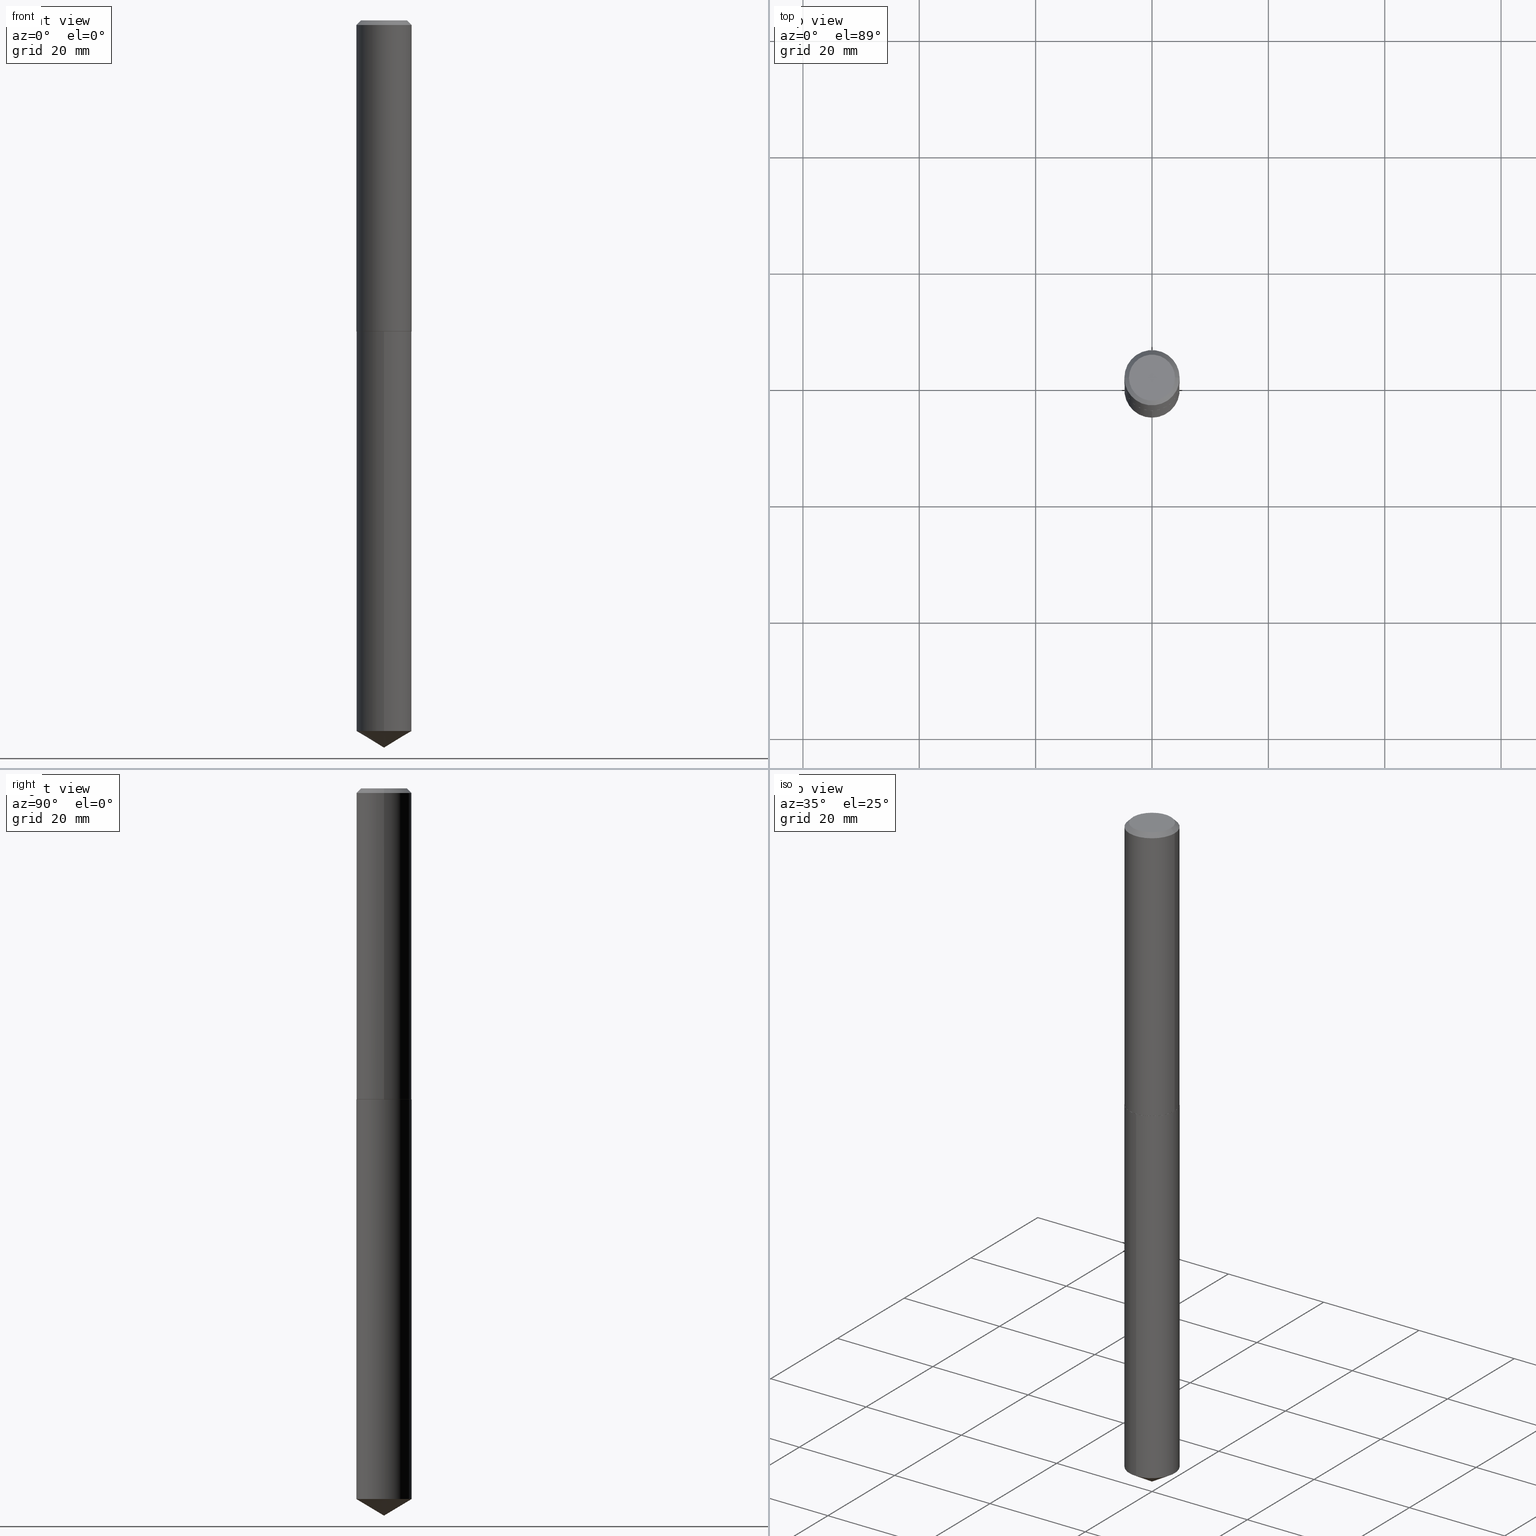
[diagram: canonical four-view strip — front | top / right | iso, engineering-drawing reading convention]
A machine part, canonical four-view strip (front | top / right | iso — engineering-drawing reading convention). The complete STEP part file that produces these views, byte-faithful:
ISO-10303-21;
HEADER;
FILE_DESCRIPTION (( 'STEP AP203' ),
    '1' );
FILE_NAME ('68288.STEP',
    '2024-04-23T12:58:37',
    ( '' ),
    ( '' ),
    'SwSTEP 2.0',
    'SolidWorks 2023',
    '' );
FILE_SCHEMA (( 'CONFIG_CONTROL_DESIGN' ));
ENDSEC;

DATA;
#1 = DIRECTION ( 'NONE',  ( -6.982962677686265922E-15, -1.000000000000000000, 3.468864327941581987E-15 ) ) ;
#2 = EDGE_CURVE ( 'NONE', #375, #233, #285, .T. ) ;
#3 = CARTESIAN_POINT ( 'NONE',  ( 5.147222743258475730E-29, -7.348869921997053302E-15, -2.104800000000000004 ) ) ;
#4 = LENGTH_MEASURE_WITH_UNIT ( LENGTH_MEASURE( 0.02539999999999999897 ), #222 );
#5 = ORIENTED_EDGE ( 'NONE', *, *, #53, .T. ) ;
#6 = VERTEX_POINT ( 'NONE', #113 ) ;
#7 = ADVANCED_BREP_SHAPE_REPRESENTATION ( '68288', ( #352, #353, #390 ), #46 ) ;
#8 = PERSON_AND_ORGANIZATION_ROLE ( 'design_supplier' ) ;
#9 = PRODUCT_RELATED_PRODUCT_CATEGORY ( 'detail', '', ( #335 ) ) ;
#10 = AXIS2_PLACEMENT_3D ( 'NONE', #384, #189, #247 ) ;
#11 = APPLICATION_PROTOCOL_DEFINITION ( 'international standard', 'config_control_design', 1994, #355 ) ;
#12 = CALENDAR_DATE ( 2024, 23, 4 ) ;
#13 = EDGE_CURVE ( 'NONE', #142, #233, #19, .T. ) ;
#14 = ORIENTED_EDGE ( 'NONE', *, *, #146, .T. ) ;
#15 = PERSON_AND_ORGANIZATION ( #270, #286 ) ;
#16 = EDGE_LOOP ( 'NONE', ( #135, #5, #357 ) ) ;
#17 = AXIS2_PLACEMENT_3D ( 'NONE', #316, #358, #242 ) ;
#18 = EDGE_LOOP ( 'NONE', ( #322, #57, #209, #265 ) ) ;
#19 = LINE ( 'NONE', #143, #359 ) ;
#20 = CARTESIAN_POINT ( 'NONE',  ( -1.305814020727214264E-15, -0.1870000000000167917, -4.808939064241846140 ) ) ;
#21 = ORIENTED_EDGE ( 'NONE', *, *, #58, .F. ) ;
#22 = DIRECTION ( 'NONE',  ( 6.090539988449786324E-15, 0.8571673007021148871, 0.5150380749100498257 ) ) ;
#23 = FACE_OUTER_BOUND ( 'NONE', #276, .T. ) ;
#24 = CONICAL_SURFACE ( 'NONE', #165, 0.1870000000000000551, 0.7853981633974453924 ) ;
#25 = DIRECTION ( 'NONE',  ( -5.985567269335949168E-15, -0.8571673007021112234, 0.5150380749100558209 ) ) ;
#26 = PRODUCT_DEFINITION_FORMATION_WITH_SPECIFIED_SOURCE ( 'ANY', '', #335, .NOT_KNOWN. ) ;
#27 = VERTEX_POINT ( 'NONE', #83 ) ;
#28 = LINE ( 'NONE', #379, #302 ) ;
#29 = EDGE_CURVE ( 'NONE', #311, #6, #205, .T. ) ;
#30 = APPROVAL ( #168, 'UNSPECIFIED' ) ;
#31 = DIRECTION ( 'NONE',  ( -6.982962677686266711E-15, -1.000000000000000000, 2.921762560068730595E-15 ) ) ;
#32 = LINE ( 'NONE', #150, #76 ) ;
#33 = CARTESIAN_POINT ( 'NONE',  ( -0.1870000000000002494, -6.020155006125664774E-15, -2.104800000000000004 ) ) ;
#34 = CARTESIAN_POINT ( 'NONE',  ( 0.1870000000000002494, -8.654683942724386880E-15, -2.104800000000000004 ) ) ;
#35 = EDGE_CURVE ( 'NONE', #142, #220, #108, .T. ) ;
#36 = DIRECTION ( 'NONE',  ( 0.7071067811864750752, -2.468850131081498176E-15, 0.7071067811866199593 ) ) ;
#37 = CARTESIAN_POINT ( 'NONE',  ( 5.148445477661568531E-29, -7.350615662666475594E-15, -2.105300000000000171 ) ) ;
#38 = ADVANCED_FACE ( 'NONE', ( #106 ), #228, .F. ) ;
#39 = AXIS2_PLACEMENT_3D ( 'NONE', #68, #275, #157 ) ;
#40 = DIRECTION ( 'NONE',  ( 1.000000000000000000, -6.982962677686266711E-15, 0.000000000000000000 ) ) ;
#41 = CC_DESIGN_DATE_AND_TIME_ASSIGNMENT ( #223, #312, ( #317 ) ) ;
#42 = DATE_TIME_ROLE ( 'creation_date' ) ;
#43 = PERSON_AND_ORGANIZATION ( #270, #286 ) ;
#44 = CONICAL_SURFACE ( 'NONE', #170, 0.1870000000000002494, 0.7853981633973459164 ) ;
#45 = ORIENTED_EDGE ( 'NONE', *, *, #49, .F. ) ;
#46 =( GEOMETRIC_REPRESENTATION_CONTEXT ( 3 ) GLOBAL_UNCERTAINTY_ASSIGNED_CONTEXT ( ( #69 ) ) GLOBAL_UNIT_ASSIGNED_CONTEXT ( ( #332, #188, #271 ) ) REPRESENTATION_CONTEXT ( 'NONE', 'WORKASPACE' ) );
#47 = EDGE_LOOP ( 'NONE', ( #257, #176, #338 ) ) ;
#48 = PERSON_AND_ORGANIZATION ( #270, #286 ) ;
#49 = EDGE_CURVE ( 'NONE', #297, #139, #74, .T. ) ;
#50 = AXIS2_PLACEMENT_3D ( 'NONE', #145, #116, #236 ) ;
#51 = AXIS2_PLACEMENT_3D ( 'NONE', #364, #184, #40 ) ;
#52 = DIRECTION ( 'NONE',  ( -2.445468806185136597E-29, 3.491481338843145583E-15, 1.000000000000000000 ) ) ;
#53 = EDGE_CURVE ( 'NONE', #311, #182, #32, .T. ) ;
#54 = DIRECTION ( 'NONE',  ( 1.000000000000000000, -6.982962677686266711E-15, 0.000000000000000000 ) ) ;
#55 = LINE ( 'NONE', #178, #171 ) ;
#56 = ORIENTED_EDGE ( 'NONE', *, *, #385, .T. ) ;
#57 = ORIENTED_EDGE ( 'NONE', *, *, #254, .T. ) ;
#58 = EDGE_CURVE ( 'NONE', #374, #297, #65, .T. ) ;
#59 = FACE_OUTER_BOUND ( 'NONE', #260, .T. ) ;
#60 = LOCAL_TIME ( 8, 58, 37.00000000000000000, #279 ) ;
#61 = EDGE_LOOP ( 'NONE', ( #130, #112, #201, #179 ) ) ;
#62 = CARTESIAN_POINT ( 'NONE',  ( 2.995012271200182885E-29, -1.043445458012565188E-14, -2.105300000000000171 ) ) ;
#63 = DIRECTION ( 'NONE',  ( 2.438088387897960049E-29, -3.491481338843145188E-15, -1.000000000000000000 ) ) ;
#64 = CARTESIAN_POINT ( 'NONE',  ( 0.000000000000000000, 0.000000000000000000, 0.000000000000000000 ) ) ;
#65 = CIRCLE ( 'NONE', #180, 0.1557499999999999996 ) ;
#66 = CIRCLE ( 'NONE', #102, 0.1865000000000001934 ) ;
#67 = LINE ( 'NONE', #388, #97 ) ;
#68 = CARTESIAN_POINT ( 'NONE',  ( 1.175993550173012053E-28, -1.679057157046176754E-14, -4.808939064241846140 ) ) ;
#69 = UNCERTAINTY_MEASURE_WITH_UNIT (LENGTH_MEASURE( 1.000000000000000082E-05 ), #332, 'distance_accuracy_value', 'NONE');
#70 = EDGE_CURVE ( 'NONE', #182, #196, #28, .T. ) ;
#71 = CARTESIAN_POINT ( 'NONE',  ( 5.148445477661568531E-29, -7.350615662666475594E-15, -2.105300000000000171 ) ) ;
#72 = DIRECTION ( 'NONE',  ( -2.445468806185136597E-29, 3.491481338843145583E-15, 1.000000000000000000 ) ) ;
#73 = PERSON_AND_ORGANIZATION_ROLE ( 'design_owner' ) ;
#74 = LINE ( 'NONE', #149, #239 ) ;
#75 = DATE_AND_TIME ( #370, #60 ) ;
#76 = VECTOR ( 'NONE', #25, 39.37007874015748143 ) ;
#77 = CC_DESIGN_SECURITY_CLASSIFICATION ( #317, ( #26 ) ) ;
#78 = APPROVAL_ROLE ( '' ) ;
#79 = EDGE_LOOP ( 'NONE', ( #272, #346 ) ) ;
#80 = EDGE_CURVE ( 'NONE', #233, #375, #229, .T. ) ;
#81 = PERSON_AND_ORGANIZATION ( #270, #286 ) ;
#82 = DIRECTION ( 'NONE',  ( 2.445468806185136597E-29, -3.491481338843145583E-15, -1.000000000000000000 ) ) ;
#83 = CARTESIAN_POINT ( 'NONE',  ( 1.328714915871505674E-15, 0.1869999999999926721, -2.105300000000000615 ) ) ;
#84 = CONICAL_SURFACE ( 'NONE', #304, 0.1870000000000000551, 0.7853981633974453924 ) ;
#85 = DIRECTION ( 'NONE',  ( -1.000000000000000000, 6.982962677686266711E-15, 0.000000000000000000 ) ) ;
#86 = FACE_OUTER_BOUND ( 'NONE', #151, .T. ) ;
#87 = ORIENTED_EDGE ( 'NONE', *, *, #313, .T. ) ;
#88 = DIRECTION ( 'NONE',  ( 1.000000000000000000, -6.982962677686266711E-15, 0.000000000000000000 ) ) ;
#89 = CARTESIAN_POINT ( 'NONE',  ( 7.642090019328607041E-31, -1.091087918388490883E-16, -0.03125000000000022898 ) ) ;
#90 = AXIS2_PLACEMENT_3D ( 'NONE', #64, #244, #269 ) ;
#91 = DIMENSIONAL_EXPONENTS ( 1.000000000000000000, 0.000000000000000000, 0.000000000000000000, 0.000000000000000000, 0.000000000000000000, 0.000000000000000000, 0.000000000000000000 ) ;
#92 = DIRECTION ( 'NONE',  ( -1.000000000000000000, 6.982962677686265922E-15, -4.876176775795935793E-29 ) ) ;
#93 = CYLINDRICAL_SURFACE ( 'NONE', #90, 0.1870000000000001383 ) ;
#94 = ADVANCED_FACE ( 'NONE', ( #213 ), #24, .T. ) ;
#95 = LINE ( 'NONE', #128, #140 ) ;
#96 = VECTOR ( 'NONE', #22, 39.37007874015748854 ) ;
#97 = VECTOR ( 'NONE', #362, 39.37007874015748143 ) ;
#98 = ORIENTED_EDGE ( 'NONE', *, *, #80, .T. ) ;
#99 = DIRECTION ( 'NONE',  ( -2.445468806185136877E-29, 3.491481338843145188E-15, 1.000000000000000000 ) ) ;
#100 = APPROVAL_DATE_TIME ( #163, #30 ) ;
#101 = CONICAL_SURFACE ( 'NONE', #315, 65.52281426576865897, 1.029744258676656088 ) ;
#102 = AXIS2_PLACEMENT_3D ( 'NONE', #37, #215, #277 ) ;
#103 = CALENDAR_DATE ( 2024, 23, 4 ) ;
#104 = DESIGN_CONTEXT ( 'detailed design', #152, 'design' ) ;
#105 = MECHANICAL_CONTEXT ( 'NONE', #355, 'mechanical' ) ;
#106 = FACE_OUTER_BOUND ( 'NONE', #79, .T. ) ;
#107 = EDGE_LOOP ( 'NONE', ( #326, #232 ) ) ;
#108 = CIRCLE ( 'NONE', #50, 0.1865000000000001934 ) ;
#109 = APPROVAL_PERSON_ORGANIZATION ( #81, #132, #372 ) ;
#110 = DIRECTION ( 'NONE',  ( 1.000000000000000000, 0.000000000000000000, 0.000000000000000000 ) ) ;
#111 = ORIENTED_EDGE ( 'NONE', *, *, #2, .F. ) ;
#112 = ORIENTED_EDGE ( 'NONE', *, *, #221, .F. ) ;
#113 = CARTESIAN_POINT ( 'NONE',  ( 1.328714915871504687E-15, 0.1869999999999832074, -4.808939064241847028 ) ) ;
#114 = ORIENTED_EDGE ( 'NONE', *, *, #133, .T. ) ;
#115 = CC_DESIGN_PERSON_AND_ORGANIZATION_ASSIGNMENT ( #43, #8, ( #26 ) ) ;
#116 = DIRECTION ( 'NONE',  ( -2.445468806185136597E-29, 3.491481338843145583E-15, 1.000000000000000000 ) ) ;
#117 = CARTESIAN_POINT ( 'NONE',  ( 7.642090019328607041E-31, -1.091087918388490883E-16, -0.03125000000000022898 ) ) ;
#118 = VECTOR ( 'NONE', #206, 39.37007874015748143 ) ;
#119 = CONICAL_SURFACE ( 'NONE', #262, 65.52281426576865897, 1.029744258676656088 ) ;
#120 = DIRECTION ( 'NONE',  ( -2.445404089440668172E-29, 3.491574016904672827E-15, 1.000000000000000000 ) ) ;
#121 = ORIENTED_EDGE ( 'NONE', *, *, #221, .T. ) ;
#122 = CARTESIAN_POINT ( 'NONE',  ( 1.175993550173012053E-28, -1.679057157046176754E-14, -4.808939064241846140 ) ) ;
#123 = CARTESIAN_POINT ( 'NONE',  ( 5.147222743258475730E-29, -7.348869921997053302E-15, -2.104800000000000004 ) ) ;
#124 = AXIS2_PLACEMENT_3D ( 'NONE', #155, #380, #356 ) ;
#125 = LOCAL_TIME ( 8, 58, 37.00000000000000000, #134 ) ;
#126 = CARTESIAN_POINT ( 'NONE',  ( 5.147222743258475730E-29, -7.348869921997053302E-15, -2.104800000000000004 ) ) ;
#127 = DIRECTION ( 'NONE',  ( -2.445404089440668172E-29, 3.491574016904672827E-15, 1.000000000000000000 ) ) ;
#128 = CARTESIAN_POINT ( 'NONE',  ( 0.1870000000000001383, -1.305814020727332790E-15, 9.118450570738406715E-30 ) ) ;
#129 = CC_DESIGN_APPROVAL ( #132, ( #136 ) ) ;
#130 = ORIENTED_EDGE ( 'NONE', *, *, #211, .F. ) ;
#131 = LINE ( 'NONE', #34, #373 ) ;
#132 = APPROVAL ( #253, 'UNSPECIFIED' ) ;
#133 = EDGE_CURVE ( 'NONE', #182, #6, #191, .T. ) ;
#134 = COORDINATED_UNIVERSAL_TIME_OFFSET ( 5, 0, .BEHIND. ) ;
#135 = ORIENTED_EDGE ( 'NONE', *, *, #29, .F. ) ;
#136 = PRODUCT_DEFINITION ( 'UNKNOWN', '', #26, #104 ) ;
#137 = CC_DESIGN_PERSON_AND_ORGANIZATION_ASSIGNMENT ( #48, #341, ( #317 ) ) ;
#138 = EDGE_CURVE ( 'NONE', #27, #196, #344, .T. ) ;
#139 = VERTEX_POINT ( 'NONE', #289 ) ;
#140 = VECTOR ( 'NONE', #99, 39.37007874015748143 ) ;
#141 = AXIS2_PLACEMENT_3D ( 'NONE', #183, #120, #266 ) ;
#142 = VERTEX_POINT ( 'NONE', #175 ) ;
#143 = CARTESIAN_POINT ( 'NONE',  ( -0.1870000000000002494, -6.020155006125664774E-15, -2.104800000000000004 ) ) ;
#144 = DIRECTION ( 'NONE',  ( -2.445404089440668172E-29, 3.491574016904672827E-15, 1.000000000000000000 ) ) ;
#145 = CARTESIAN_POINT ( 'NONE',  ( 5.148445477661568531E-29, -7.350615662666475594E-15, -2.105300000000000171 ) ) ;
#146 = EDGE_CURVE ( 'NONE', #6, #27, #291, .T. ) ;
#147 = FACE_OUTER_BOUND ( 'NONE', #16, .T. ) ;
#148 = ADVANCED_FACE ( 'NONE', ( #290 ), #256, .T. ) ;
#149 = CARTESIAN_POINT ( 'NONE',  ( -0.1870000000000000551, 1.196705228888483098E-15, -0.03125000000000022898 ) ) ;
#150 = CARTESIAN_POINT ( 'NONE',  ( 1.203456714536435825E-28, -1.718308320939296617E-14, -4.921299999999999564 ) ) ;
#151 = EDGE_LOOP ( 'NONE', ( #21, #300, #235, #45 ) ) ;
#152 = APPLICATION_CONTEXT ( 'configuration controlled 3d designs of mechanical parts and assemblies' ) ;
#153 = DIRECTION ( 'NONE',  ( 2.445468806185136597E-29, -3.491481338843145583E-15, -1.000000000000000000 ) ) ;
#154 = ADVANCED_FACE ( 'NONE', ( #172 ), #202, .T. ) ;
#155 = CARTESIAN_POINT ( 'NONE',  ( 5.147222743258475730E-29, -7.348869921997053302E-15, -2.104800000000000004 ) ) ;
#156 = AXIS2_PLACEMENT_3D ( 'NONE', #89, #377, #324 ) ;
#157 = DIRECTION ( 'NONE',  ( -6.982962677686266711E-15, -1.000000000000000000, 2.921762560068730595E-15 ) ) ;
#158 = CARTESIAN_POINT ( 'NONE',  ( 0.1557499999999999996, -1.230272240287521027E-15, 1.206277097168247979E-18 ) ) ;
#159 = ADVANCED_FACE ( 'NONE', ( #23 ), #44, .T. ) ;
#160 = ORIENTED_EDGE ( 'NONE', *, *, #80, .F. ) ;
#161 = CARTESIAN_POINT ( 'NONE',  ( -8.424104815925572957E-28, 1.202806558783548731E-13, 34.44877874015747921 ) ) ;
#162 = CIRCLE ( 'NONE', #39, 0.1869999999999999996 ) ;
#163 = DATE_AND_TIME ( #345, #240 ) ;
#164 = COORDINATED_UNIVERSAL_TIME_OFFSET ( 5, 0, .BEHIND. ) ;
#165 = AXIS2_PLACEMENT_3D ( 'NONE', #349, #153, #293 ) ;
#166 = SHAPE_DEFINITION_REPRESENTATION ( #367, #7 ) ;
#167 = ORIENTED_EDGE ( 'NONE', *, *, #234, .T. ) ;
#168 = APPROVAL_STATUS ( 'not_yet_approved' ) ;
#169 = PERSON_AND_ORGANIZATION ( #270, #286 ) ;
#170 = AXIS2_PLACEMENT_3D ( 'NONE', #126, #52, #88 ) ;
#171 = VECTOR ( 'NONE', #361, 39.37007874015748143 ) ;
#172 = FACE_OUTER_BOUND ( 'NONE', #18, .T. ) ;
#173 = ADVANCED_FACE ( 'NONE', ( #147 ), #101, .T. ) ;
#174 = ORIENTED_EDGE ( 'NONE', *, *, #70, .F. ) ;
#175 = CARTESIAN_POINT ( 'NONE',  ( -0.1865000000000001934, -6.022804233299775975E-15, -2.105300000000000171 ) ) ;
#176 = ORIENTED_EDGE ( 'NONE', *, *, #29, .T. ) ;
#177 = EDGE_CURVE ( 'NONE', #139, #281, #267, .T. ) ;
#178 = CARTESIAN_POINT ( 'NONE',  ( 0.1870000000000000551, -1.392021917422125758E-15, -0.03125000000000022898 ) ) ;
#179 = ORIENTED_EDGE ( 'NONE', *, *, #177, .T. ) ;
#180 = AXIS2_PLACEMENT_3D ( 'NONE', #241, #381, #263 ) ;
#181 = DIRECTION ( 'NONE',  ( 1.000000000000000000, -6.982962677686265922E-15, 4.876176775795935793E-29 ) ) ;
#182 = VERTEX_POINT ( 'NONE', #20 ) ;
#183 = CARTESIAN_POINT ( 'NONE',  ( 5.148445477661568531E-29, -7.350615662666475594E-15, -2.105300000000000171 ) ) ;
#184 = DIRECTION ( 'NONE',  ( -2.445468806185136597E-29, 3.491481338843145583E-15, 1.000000000000000000 ) ) ;
#185 = ORIENTED_EDGE ( 'NONE', *, *, #333, .T. ) ;
#186 = CYLINDRICAL_SURFACE ( 'NONE', #274, 0.1869999999999999996 ) ;
#187 = ADVANCED_FACE ( 'NONE', ( #259 ), #376, .F. ) ;
#188 =( NAMED_UNIT ( * ) PLANE_ANGLE_UNIT ( ) SI_UNIT ( $, .RADIAN. ) );
#189 = DIRECTION ( 'NONE',  ( 2.445404089440668172E-29, -3.491574016904672432E-15, -1.000000000000000000 ) ) ;
#190 = CARTESIAN_POINT ( 'NONE',  ( 0.1865000000000001934, -8.652938202054966166E-15, -2.105300000000000171 ) ) ;
#191 = CIRCLE ( 'NONE', #210, 0.1869999999999999996 ) ;
#192 = DIRECTION ( 'NONE',  ( -6.982962677686266711E-15, -1.000000000000000000, 2.921762560068730595E-15 ) ) ;
#193 = ADVANCED_FACE ( 'NONE', ( #59 ), #237, .T. ) ;
#194 = AXIS2_PLACEMENT_3D ( 'NONE', #383, #127, #336 ) ;
#195 = COORDINATED_UNIVERSAL_TIME_OFFSET ( 5, 0, .BEHIND. ) ;
#196 = VERTEX_POINT ( 'NONE', #347 ) ;
#197 = APPROVAL_DATE_TIME ( #368, #132 ) ;
#198 = SECURITY_CLASSIFICATION_LEVEL ( 'unclassified' ) ;
#199 = CLOSED_SHELL ( 'NONE', ( #203, #154, #148, #187, #159, #294, #94, #226 ) ) ;
#200 = PERSON_AND_ORGANIZATION ( #270, #286 ) ;
#201 = ORIENTED_EDGE ( 'NONE', *, *, #49, .T. ) ;
#202 = CYLINDRICAL_SURFACE ( 'NONE', #17, 0.1870000000000001383 ) ;
#203 = ADVANCED_FACE ( 'NONE', ( #86 ), #84, .T. ) ;
#204 = AXIS2_PLACEMENT_3D ( 'NONE', #62, #264, #181 ) ;
#205 = LINE ( 'NONE', #318, #96 ) ;
#206 = DIRECTION ( 'NONE',  ( -2.445404089440668172E-29, 3.491574016904672432E-15, 1.000000000000000000 ) ) ;
#207 = CARTESIAN_POINT ( 'NONE',  ( 1.328714915871438620E-15, 0.1869999999999926721, -2.105300000000000615 ) ) ;
#208 = CARTESIAN_POINT ( 'NONE',  ( 5.148445477661568531E-29, -7.350615662666475594E-15, -2.105300000000000171 ) ) ;
#209 = ORIENTED_EDGE ( 'NONE', *, *, #307, .F. ) ;
#210 = AXIS2_PLACEMENT_3D ( 'NONE', #122, #321, #292 ) ;
#211 = EDGE_CURVE ( 'NONE', #374, #281, #55, .T. ) ;
#212 = LOCAL_TIME ( 8, 58, 37.00000000000000000, #195 ) ;
#213 = FACE_OUTER_BOUND ( 'NONE', #61, .T. ) ;
#214 = CC_DESIGN_PERSON_AND_ORGANIZATION_ASSIGNMENT ( #255, #309, ( #136 ) ) ;
#215 = DIRECTION ( 'NONE',  ( -2.445468806185136597E-29, 3.491481338843145583E-15, 1.000000000000000000 ) ) ;
#216 = CARTESIAN_POINT ( 'NONE',  ( -1.474956506360344439E-47, 2.105846987104261168E-33, 6.031385485800719294E-19 ) ) ;
#217 = ORIENTED_EDGE ( 'NONE', *, *, #146, .F. ) ;
#218 = CC_DESIGN_APPROVAL ( #337, ( #317 ) ) ;
#219 = DIRECTION ( 'NONE',  ( -2.445404089440668172E-29, 3.491574016904672827E-15, 1.000000000000000000 ) ) ;
#220 = VERTEX_POINT ( 'NONE', #190 ) ;
#221 = EDGE_CURVE ( 'NONE', #297, #374, #339, .T. ) ;
#222 =( LENGTH_UNIT ( ) NAMED_UNIT ( * ) SI_UNIT ( $, .METRE. ) );
#223 = DATE_AND_TIME ( #103, #382 ) ;
#224 = EDGE_LOOP ( 'NONE', ( #121, #314 ) ) ;
#225 = COORDINATED_UNIVERSAL_TIME_OFFSET ( 5, 0, .BEHIND. ) ;
#226 = ADVANCED_FACE ( 'NONE', ( #328 ), #301, .F. ) ;
#227 = ORIENTED_EDGE ( 'NONE', *, *, #177, .F. ) ;
#228 = PLANE ( 'NONE',  #10 ) ;
#229 = CIRCLE ( 'NONE', #325, 0.1870000000000002494 ) ;
#230 = ORIENTED_EDGE ( 'NONE', *, *, #296, .F. ) ;
#231 = CALENDAR_DATE ( 2024, 23, 4 ) ;
#232 = ORIENTED_EDGE ( 'NONE', *, *, #35, .F. ) ;
#233 = VERTEX_POINT ( 'NONE', #33 ) ;
#234 = EDGE_CURVE ( 'NONE', #6, #182, #162, .T. ) ;
#235 = ORIENTED_EDGE ( 'NONE', *, *, #307, .T. ) ;
#236 = DIRECTION ( 'NONE',  ( 1.000000000000000000, -6.982962677686265922E-15, 0.000000000000000000 ) ) ;
#237 = CYLINDRICAL_SURFACE ( 'NONE', #141, 0.1869999999999999996 ) ;
#238 = ORIENTED_EDGE ( 'NONE', *, *, #138, .F. ) ;
#239 = VECTOR ( 'NONE', #288, 39.37007874015748143 ) ;
#240 = LOCAL_TIME ( 8, 58, 37.00000000000000000, #225 ) ;
#241 = CARTESIAN_POINT ( 'NONE',  ( -2.949913012720688878E-47, 4.211693974208522336E-33, 1.206277097160143859E-18 ) ) ;
#242 = DIRECTION ( 'NONE',  ( 1.000000000000000000, -6.982962677686266711E-15, 4.876176775795935793E-29 ) ) ;
#243 = DIRECTION ( 'NONE',  ( -2.445404089440668172E-29, 3.491574016904672827E-15, 1.000000000000000000 ) ) ;
#244 = DIRECTION ( 'NONE',  ( -2.445468806185136597E-29, 3.491481338843145583E-15, 1.000000000000000000 ) ) ;
#245 = CARTESIAN_POINT ( 'NONE',  ( 0.1870000000000000551, -1.414922812566181102E-15, -0.03125000000000022898 ) ) ;
#246 = FACE_OUTER_BOUND ( 'NONE', #258, .T. ) ;
#247 = DIRECTION ( 'NONE',  ( 6.982962677686265922E-15, 1.000000000000000000, -3.491574016904672432E-15 ) ) ;
#248 = DIRECTION ( 'NONE',  ( -2.445468806185136597E-29, 3.491481338843145583E-15, 1.000000000000000000 ) ) ;
#249 = PERSON_AND_ORGANIZATION ( #270, #286 ) ;
#250 = ORIENTED_EDGE ( 'NONE', *, *, #13, .F. ) ;
#251 = EDGE_LOOP ( 'NONE', ( #87, #371, #111, #330 ) ) ;
#252 = APPROVAL_ROLE ( '' ) ;
#253 = APPROVAL_STATUS ( 'not_yet_approved' ) ;
#254 = EDGE_CURVE ( 'NONE', #233, #139, #67, .T. ) ;
#255 = PERSON_AND_ORGANIZATION ( #270, #286 ) ;
#256 = CONICAL_SURFACE ( 'NONE', #124, 0.1870000000000002494, 0.7853981633973459164 ) ;
#257 = ORIENTED_EDGE ( 'NONE', *, *, #53, .F. ) ;
#258 = EDGE_LOOP ( 'NONE', ( #217, #167, #387, #238 ) ) ;
#259 = FACE_OUTER_BOUND ( 'NONE', #107, .T. ) ;
#260 = EDGE_LOOP ( 'NONE', ( #114, #14, #230, #174 ) ) ;
#261 = CARTESIAN_POINT ( 'NONE',  ( -8.424104815925572957E-28, 1.202806558783548731E-13, 34.44877874015747921 ) ) ;
#262 = AXIS2_PLACEMENT_3D ( 'NONE', #161, #329, #1 ) ;
#263 = DIRECTION ( 'NONE',  ( 1.000000000000000000, -6.982962677686265922E-15, 4.876226489925215677E-29 ) ) ;
#264 = DIRECTION ( 'NONE',  ( -2.438088387897960049E-29, 3.491481338843145188E-15, 1.000000000000000000 ) ) ;
#265 = ORIENTED_EDGE ( 'NONE', *, *, #385, .F. ) ;
#266 = DIRECTION ( 'NONE',  ( -6.982962677686266711E-15, -1.000000000000000000, 2.921762560068730595E-15 ) ) ;
#267 = CIRCLE ( 'NONE', #156, 0.1870000000000000551 ) ;
#268 = CARTESIAN_POINT ( 'NONE',  ( 1.203456714536436049E-28, -1.718308320939296617E-14, -4.921299999999999564 ) ) ;
#269 = DIRECTION ( 'NONE',  ( 1.000000000000000000, -6.982962677686266711E-15, 4.876176775795935793E-29 ) ) ;
#270 = PERSON ( 'UNSPECIFIED', 'UNSPECIFIED', 'UNSPECIFIED', ('UNSPECIFIED'), ('UNSPECIFIED'), ('UNSPECIFIED') ) ;
#271 =( NAMED_UNIT ( * ) SI_UNIT ( $, .STERADIAN. ) SOLID_ANGLE_UNIT ( ) );
#272 = ORIENTED_EDGE ( 'NONE', *, *, #296, .T. ) ;
#273 = AXIS2_PLACEMENT_3D ( 'NONE', #3, #72, #308 ) ;
#274 = AXIS2_PLACEMENT_3D ( 'NONE', #71, #219, #192 ) ;
#275 = DIRECTION ( 'NONE',  ( -2.445404089440668172E-29, 3.491574016904672827E-15, 1.000000000000000000 ) ) ;
#276 = EDGE_LOOP ( 'NONE', ( #250, #351, #185, #160 ) ) ;
#277 = DIRECTION ( 'NONE',  ( 1.000000000000000000, -6.982962677686265922E-15, 0.000000000000000000 ) ) ;
#278 = PERSON_AND_ORGANIZATION_ROLE ( 'creator' ) ;
#279 = COORDINATED_UNIVERSAL_TIME_OFFSET ( 5, 0, .BEHIND. ) ;
#280 = APPROVAL_PERSON_ORGANIZATION ( #249, #30, #252 ) ;
#281 = VERTEX_POINT ( 'NONE', #245 ) ;
#282 = CARTESIAN_POINT ( 'NONE',  ( 0.000000000000000000, 0.000000000000000000, 0.000000000000000000 ) ) ;
#283 = EDGE_LOOP ( 'NONE', ( #287, #98, #56, #227 ) ) ;
#284 = APPROVAL_DATE_TIME ( #75, #337 ) ;
#285 = CIRCLE ( 'NONE', #273, 0.1870000000000002494 ) ;
#286 = ORGANIZATION ( 'UNSPECIFIED', 'UNSPECIFIED', '' ) ;
#287 = ORIENTED_EDGE ( 'NONE', *, *, #254, .F. ) ;
#288 = DIRECTION ( 'NONE',  ( -0.7071067811865454633, 2.468850131082235367E-15, -0.7071067811865495711 ) ) ;
#289 = CARTESIAN_POINT ( 'NONE',  ( -0.1870000000000000551, -2.400274441046563068E-15, -0.03125000000000022898 ) ) ;
#290 = FACE_OUTER_BOUND ( 'NONE', #251, .T. ) ;
#291 = LINE ( 'NONE', #207, #118 ) ;
#292 = DIRECTION ( 'NONE',  ( -6.982962677686266711E-15, -1.000000000000000000, 2.921762560068730595E-15 ) ) ;
#293 = DIRECTION ( 'NONE',  ( -1.000000000000000000, 6.982962677686266711E-15, 0.000000000000000000 ) ) ;
#294 = ADVANCED_FACE ( 'NONE', ( #365 ), #93, .T. ) ;
#295 = DIRECTION ( 'NONE',  ( 1.000000000000000000, -6.982962677686265922E-15, 4.876226489925215677E-29 ) ) ;
#296 = EDGE_CURVE ( 'NONE', #196, #27, #298, .T. ) ;
#297 = VERTEX_POINT ( 'NONE', #305 ) ;
#298 = CIRCLE ( 'NONE', #194, 0.1869999999999999996 ) ;
#299 = CARTESIAN_POINT ( 'NONE',  ( -2.949913012720688878E-47, 4.211693974208522336E-33, 1.206277097160143859E-18 ) ) ;
#300 = ORIENTED_EDGE ( 'NONE', *, *, #211, .T. ) ;
#301 = PLANE ( 'NONE',  #360 ) ;
#302 = VECTOR ( 'NONE', #319, 39.37007874015748143 ) ;
#303 = AXIS2_PLACEMENT_3D ( 'NONE', #299, #248, #295 ) ;
#304 = AXIS2_PLACEMENT_3D ( 'NONE', #117, #82, #85 ) ;
#305 = CARTESIAN_POINT ( 'NONE',  ( -0.1557499999999999996, 1.142150832969059533E-15, 1.206277097152347309E-18 ) ) ;
#306 = APPLICATION_PROTOCOL_DEFINITION ( 'international standard', 'config_control_design', 1994, #152 ) ;
#307 = EDGE_CURVE ( 'NONE', #281, #139, #350, .T. ) ;
#308 = DIRECTION ( 'NONE',  ( 1.000000000000000000, -6.982962677686266711E-15, 0.000000000000000000 ) ) ;
#309 = PERSON_AND_ORGANIZATION_ROLE ( 'creator' ) ;
#310 = APPROVAL_STATUS ( 'not_yet_approved' ) ;
#311 = VERTEX_POINT ( 'NONE', #268 ) ;
#312 = DATE_TIME_ROLE ( 'classification_date' ) ;
#313 = EDGE_CURVE ( 'NONE', #220, #142, #66, .T. ) ;
#314 = ORIENTED_EDGE ( 'NONE', *, *, #58, .T. ) ;
#315 = AXIS2_PLACEMENT_3D ( 'NONE', #261, #144, #327 ) ;
#316 = CARTESIAN_POINT ( 'NONE',  ( 0.000000000000000000, 0.000000000000000000, 0.000000000000000000 ) ) ;
#317 = SECURITY_CLASSIFICATION ( '', '', #198 ) ;
#318 = CARTESIAN_POINT ( 'NONE',  ( 1.203484203115972637E-28, -1.718269297914709958E-14, -4.921299999999999564 ) ) ;
#319 = DIRECTION ( 'NONE',  ( -2.445404089440668172E-29, 3.491574016904672432E-15, 1.000000000000000000 ) ) ;
#320 = ADVANCED_FACE ( 'NONE', ( #334 ), #119, .T. ) ;
#321 = DIRECTION ( 'NONE',  ( -2.445404089440668172E-29, 3.491574016904672827E-15, 1.000000000000000000 ) ) ;
#322 = ORIENTED_EDGE ( 'NONE', *, *, #2, .T. ) ;
#323 = ADVANCED_FACE ( 'NONE', ( #246 ), #186, .T. ) ;
#324 = DIRECTION ( 'NONE',  ( 1.000000000000000000, -6.982962677686266711E-15, 0.000000000000000000 ) ) ;
#325 = AXIS2_PLACEMENT_3D ( 'NONE', #123, #354, #54 ) ;
#326 = ORIENTED_EDGE ( 'NONE', *, *, #313, .F. ) ;
#327 = DIRECTION ( 'NONE',  ( -6.982962677686265922E-15, -1.000000000000000000, 3.468864327941581987E-15 ) ) ;
#328 = FACE_OUTER_BOUND ( 'NONE', #224, .T. ) ;
#329 = DIRECTION ( 'NONE',  ( -2.445404089440668172E-29, 3.491574016904672827E-15, 1.000000000000000000 ) ) ;
#330 = ORIENTED_EDGE ( 'NONE', *, *, #333, .F. ) ;
#331 = CC_DESIGN_APPROVAL ( #30, ( #26 ) ) ;
#332 =( CONVERSION_BASED_UNIT ( 'INCH', #4 ) LENGTH_UNIT ( ) NAMED_UNIT ( #91 ) );
#333 = EDGE_CURVE ( 'NONE', #220, #375, #131, .T. ) ;
#334 = FACE_OUTER_BOUND ( 'NONE', #47, .T. ) ;
#335 = PRODUCT ( '68288', '68288', '', ( #105 ) ) ;
#336 = DIRECTION ( 'NONE',  ( -6.982962677686266711E-15, -1.000000000000000000, 2.921762560068730595E-15 ) ) ;
#337 = APPROVAL ( #310, 'UNSPECIFIED' ) ;
#338 = ORIENTED_EDGE ( 'NONE', *, *, #133, .F. ) ;
#339 = CIRCLE ( 'NONE', #303, 0.1557499999999999996 ) ;
#340 = DIRECTION ( 'NONE',  ( 0.000000000000000000, 0.000000000000000000, 1.000000000000000000 ) ) ;
#341 = PERSON_AND_ORGANIZATION_ROLE ( 'classification_officer' ) ;
#342 = CC_DESIGN_PERSON_AND_ORGANIZATION_ASSIGNMENT ( #15, #73, ( #335 ) ) ;
#343 = CC_DESIGN_PERSON_AND_ORGANIZATION_ASSIGNMENT ( #200, #278, ( #26 ) ) ;
#344 = CIRCLE ( 'NONE', #389, 0.1869999999999999996 ) ;
#345 = CALENDAR_DATE ( 2024, 23, 4 ) ;
#346 = ORIENTED_EDGE ( 'NONE', *, *, #138, .T. ) ;
#347 = CARTESIAN_POINT ( 'NONE',  ( -1.305814020727280331E-15, -0.1870000000000073548, -2.105299999999999727 ) ) ;
#348 = DIRECTION ( 'NONE',  ( -0.7071067811864750752, 7.493145998870092258E-15, 0.7071067811866199593 ) ) ;
#349 = CARTESIAN_POINT ( 'NONE',  ( 7.642090019328607041E-31, -1.091087918388490883E-16, -0.03125000000000022898 ) ) ;
#350 = CIRCLE ( 'NONE', #51, 0.1870000000000000551 ) ;
#351 = ORIENTED_EDGE ( 'NONE', *, *, #35, .T. ) ;
#352 = MANIFOLD_SOLID_BREP ( 'Body-Move/Copy2[1]', #363 ) ;
#353 = MANIFOLD_SOLID_BREP ( 'Body-Move/Copy2[2]', #199 ) ;
#354 = DIRECTION ( 'NONE',  ( -2.445468806185136597E-29, 3.491481338843145583E-15, 1.000000000000000000 ) ) ;
#355 = APPLICATION_CONTEXT ( 'configuration controlled 3d designs of mechanical parts and assemblies' ) ;
#356 = DIRECTION ( 'NONE',  ( 1.000000000000000000, -6.982962677686266711E-15, 0.000000000000000000 ) ) ;
#357 = ORIENTED_EDGE ( 'NONE', *, *, #234, .F. ) ;
#358 = DIRECTION ( 'NONE',  ( -2.445468806185136597E-29, 3.491481338843145583E-15, 1.000000000000000000 ) ) ;
#359 = VECTOR ( 'NONE', #348, 39.37007874015748143 ) ;
#360 = AXIS2_PLACEMENT_3D ( 'NONE', #216, #63, #92 ) ;
#361 = DIRECTION ( 'NONE',  ( 0.7071067811865454633, -7.319954787623248157E-15, -0.7071067811865495711 ) ) ;
#362 = DIRECTION ( 'NONE',  ( -2.445468806185136877E-29, 3.491481338843145188E-15, 1.000000000000000000 ) ) ;
#363 = CLOSED_SHELL ( 'NONE', ( #193, #320, #173, #323, #38 ) ) ;
#364 = CARTESIAN_POINT ( 'NONE',  ( 7.642090019328607041E-31, -1.091087918388490883E-16, -0.03125000000000022898 ) ) ;
#365 = FACE_OUTER_BOUND ( 'NONE', #283, .T. ) ;
#366 = CC_DESIGN_DATE_AND_TIME_ASSIGNMENT ( #369, #42, ( #136 ) ) ;
#367 = PRODUCT_DEFINITION_SHAPE ( 'NONE', 'NONE',  #136 ) ;
#368 = DATE_AND_TIME ( #231, #212 ) ;
#369 = DATE_AND_TIME ( #12, #125 ) ;
#370 = CALENDAR_DATE ( 2024, 23, 4 ) ;
#371 = ORIENTED_EDGE ( 'NONE', *, *, #13, .T. ) ;
#372 = APPROVAL_ROLE ( '' ) ;
#373 = VECTOR ( 'NONE', #36, 39.37007874015748143 ) ;
#374 = VERTEX_POINT ( 'NONE', #158 ) ;
#375 = VERTEX_POINT ( 'NONE', #386 ) ;
#376 = PLANE ( 'NONE',  #204 ) ;
#377 = DIRECTION ( 'NONE',  ( -2.445468806185136597E-29, 3.491481338843145583E-15, 1.000000000000000000 ) ) ;
#378 = APPROVAL_PERSON_ORGANIZATION ( #169, #337, #78 ) ;
#379 = CARTESIAN_POINT ( 'NONE',  ( -1.305814020727280331E-15, -0.1870000000000073548, -2.105299999999999727 ) ) ;
#380 = DIRECTION ( 'NONE',  ( -2.445468806185136597E-29, 3.491481338843145583E-15, 1.000000000000000000 ) ) ;
#381 = DIRECTION ( 'NONE',  ( -2.445468806185136597E-29, 3.491481338843145583E-15, 1.000000000000000000 ) ) ;
#382 = LOCAL_TIME ( 8, 58, 37.00000000000000000, #164 ) ;
#383 = CARTESIAN_POINT ( 'NONE',  ( 5.148445477661568531E-29, -7.350615662666475594E-15, -2.105300000000000171 ) ) ;
#384 = CARTESIAN_POINT ( 'NONE',  ( 5.148445477661568531E-29, -7.350615662666475594E-15, -2.105300000000000171 ) ) ;
#385 = EDGE_CURVE ( 'NONE', #375, #281, #95, .T. ) ;
#386 = CARTESIAN_POINT ( 'NONE',  ( 0.1870000000000002494, -8.654683942724386880E-15, -2.104800000000000004 ) ) ;
#387 = ORIENTED_EDGE ( 'NONE', *, *, #70, .T. ) ;
#388 = CARTESIAN_POINT ( 'NONE',  ( -0.1870000000000001383, 1.328714915871388330E-15, -9.198408618776680107E-30 ) ) ;
#389 = AXIS2_PLACEMENT_3D ( 'NONE', #208, #243, #31 ) ;
#390 = AXIS2_PLACEMENT_3D ( 'NONE', #282, #340, #110 ) ;
ENDSEC;
END-ISO-10303-21;
